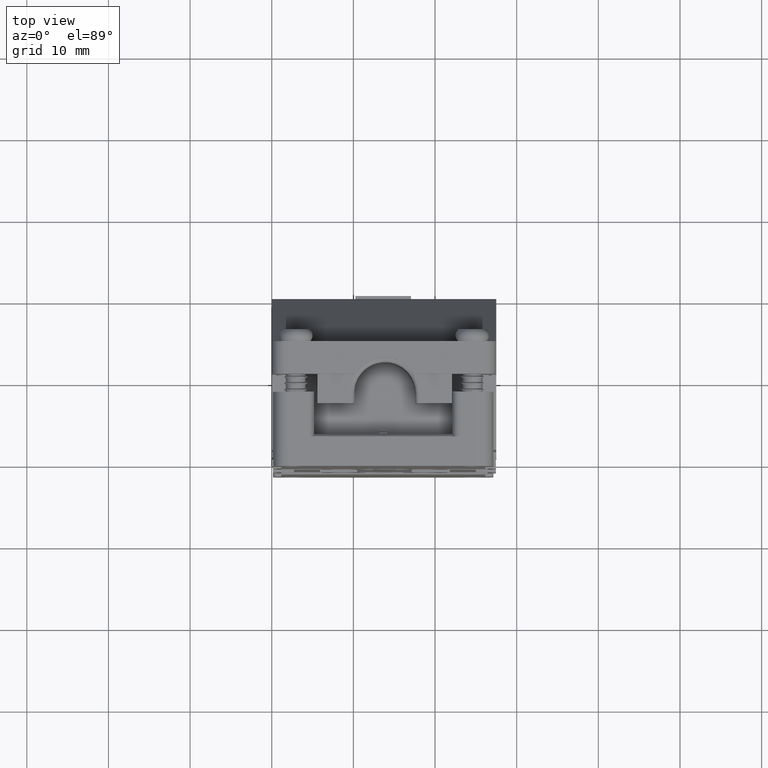
[diagram: clean part render]
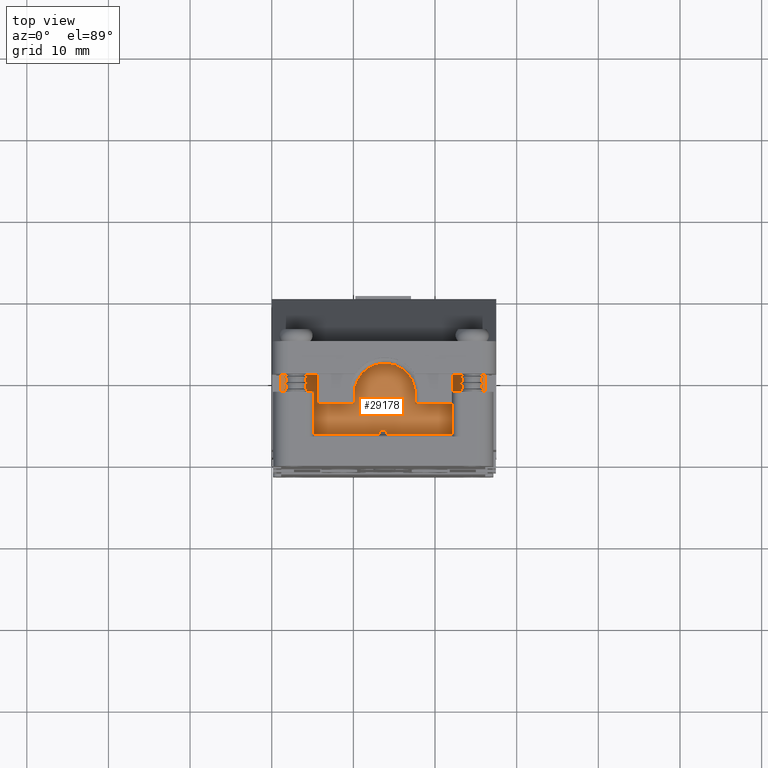
[diagram: same view with one face highlighted and labeled with its STEP entity id]
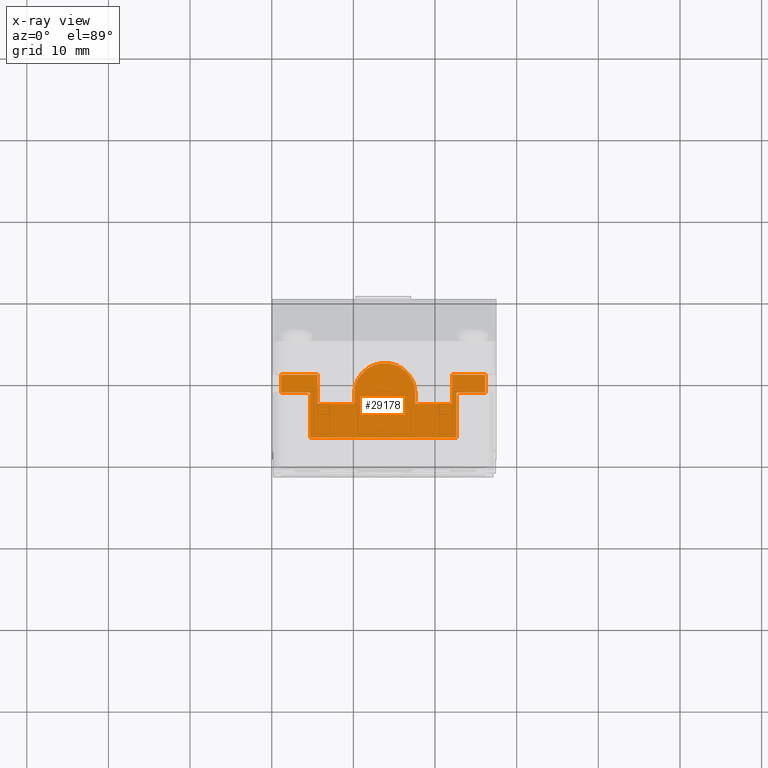
[diagram: x-ray of the same camera — body ghosted, the highlighted face saturated]
A machine part, top view. The second image highlights one B-rep face of the part: STEP entity #29178.
The next image is the same camera in x-ray: the body ghosted, the highlighted face saturated — about 0% of this face is hidden behind the body in this view.
In plain terms, the highlighted planar face has unit normal (0, 0, -1).
Its self-contained STEP definition (entity closure, byte-faithful):
#210 = DIRECTION ( 'NONE',  ( -0.0000000000000000000, -1.000000000000000000, -0.0000000000000000000 ) ) ;
#234 = LINE ( 'NONE', #237, #14259 ) ;
#237 = CARTESIAN_POINT ( 'NONE',  ( 5.600000000000000500, 4.000000000000000000, 42.65012171214300500 ) ) ;
#267 = LINE ( 'NONE', #325, #14261 ) ;
#302 = DIRECTION ( 'NONE',  ( -0.0000000000000000000, -1.000000000000000000, -0.0000000000000000000 ) ) ;
#325 = CARTESIAN_POINT ( 'NONE',  ( 22.62302097211401600, 4.000000000000000000, 42.65012171214408500 ) ) ;
#336 = LINE ( 'NONE', #344, #14248 ) ;
#339 = CARTESIAN_POINT ( 'NONE',  ( 10.09999999999999800, 4.000000000000000000, 42.65012171214328900 ) ) ;
#340 = DIRECTION ( 'NONE',  ( -1.000000000000000000, 0.0000000000000000000, -6.396607381706698500E-014 ) ) ;
#344 = CARTESIAN_POINT ( 'NONE',  ( 26.15000000000002700, -7.699999999999998400, 42.65012171214431200 ) ) ;
#346 = DIRECTION ( 'NONE',  ( 1.000000000000000000, 0.0000000000000000000, 0.0000000000000000000 ) ) ;
#348 = LINE ( 'NONE', #339, #14233 ) ;
#355 = DIRECTION ( 'NONE',  ( 0.0000000000000000000, 1.000000000000000000, 0.0000000000000000000 ) ) ;
#369 = LINE ( 'NONE', #370, #14210 ) ;
#370 = CARTESIAN_POINT ( 'NONE',  ( 26.15000000000002700, -7.025630077706068700E-014, 42.65012171214431200 ) ) ;
#371 = CARTESIAN_POINT ( 'NONE',  ( 13.85000000000000100, -2.326469788388990900, 42.65012171214376500 ) ) ;
#372 = DIRECTION ( 'NONE',  ( -0.0000000000000000000, -0.0000000000000000000, -1.000000000000000000 ) ) ;
#385 = LINE ( 'NONE', #419, #14211 ) ;
#402 = DIRECTION ( 'NONE',  ( 1.000000000000000000, -0.0000000000000000000, 6.396607381706698500E-014 ) ) ;
#419 = CARTESIAN_POINT ( 'NONE',  ( 26.15000000000002700, -3.576469788388990000, 42.65012171214431200 ) ) ;
#427 = DIRECTION ( 'NONE',  ( 1.000000000000000000, -0.0000000000000000000, 6.396607381706698500E-014 ) ) ;
#436 = CARTESIAN_POINT ( 'NONE',  ( 22.10000000000000100, 4.000000000000000000, 42.65012171214405600 ) ) ;
#472 = LINE ( 'NONE', #436, #14308 ) ;
#473 = DIRECTION ( 'NONE',  ( 0.0000000000000000000, 1.000000000000000000, 0.0000000000000000000 ) ) ;
#483 = LINE ( 'NONE', #558, #14291 ) ;
#485 = DIRECTION ( 'NONE',  ( -0.0000000000000000000, -1.000000000000000000, -0.0000000000000000000 ) ) ;
#501 = CARTESIAN_POINT ( 'NONE',  ( 26.15000000000002700, -7.025630077706068700E-014, 42.65012171214431200 ) ) ;
#502 = DIRECTION ( 'NONE',  ( 1.000000000000000000, -0.0000000000000000000, 6.396607381706698500E-014 ) ) ;
#504 = LINE ( 'NONE', #507, #14286 ) ;
#507 = CARTESIAN_POINT ( 'NONE',  ( 17.60000000000000100, 4.000000000000000000, 42.65012171214376500 ) ) ;
#508 = LINE ( 'NONE', #501, #14273 ) ;
#528 = DIRECTION ( 'NONE',  ( 0.0000000000000000000, 1.000000000000000000, 0.0000000000000000000 ) ) ;
#537 = CARTESIAN_POINT ( 'NONE',  ( 26.15000000000002700, -3.576469788388990000, 42.65012171214431200 ) ) ;
#538 = DIRECTION ( 'NONE',  ( 1.000000000000000000, -0.0000000000000000000, 6.396607381706698500E-014 ) ) ;
#558 = CARTESIAN_POINT ( 'NONE',  ( 4.676979027885858300, 4.000000000000000000, 42.65012171214294100 ) ) ;
#574 = LINE ( 'NONE', #537, #14289 ) ;
#4590 = EDGE_CURVE ( 'NONE', #26665, #26875, #23307, .T. ) ;
#4592 = EDGE_CURVE ( 'NONE', #26875, #26727, #23359, .T. ) ;
#4616 = EDGE_CURVE ( 'NONE', #26820, #26668, #23527, .T. ) ;
#4643 = EDGE_CURVE ( 'NONE', #26820, #26710, #23904, .T. ) ;
#5488 = EDGE_CURVE ( 'NONE', #26647, #26714, #234, .T. ) ;
#5513 = EDGE_CURVE ( 'NONE', #26668, #26651, #267, .T. ) ;
#5521 = EDGE_CURVE ( 'NONE', #26651, #26733, #336, .T. ) ;
#5524 = EDGE_CURVE ( 'NONE', #26699, #26715, #348, .T. ) ;
#5528 = EDGE_CURVE ( 'NONE', #26715, #26701, #14226, .T. ) ;
#5534 = EDGE_CURVE ( 'NONE', #26665, #26647, #369, .T. ) ;
#5535 = EDGE_CURVE ( 'NONE', #26752, #26659, #385, .T. ) ;
#5551 = EDGE_CURVE ( 'NONE', #26659, #26720, #472, .T. ) ;
#5570 = EDGE_CURVE ( 'NONE', #26720, #26710, #508, .T. ) ;
#5572 = EDGE_CURVE ( 'NONE', #26701, #26752, #504, .T. ) ;
#5587 = EDGE_CURVE ( 'NONE', #26733, #26727, #483, .T. ) ;
#5589 = EDGE_CURVE ( 'NONE', #26714, #26699, #574, .T. ) ;
#5919 = EDGE_LOOP ( 'NONE', ( #22351, #22331, #22333, #22342, #22341, #22327, #22348, #22334, #22311, #22350, #22387, #22376, #22354, #22349, #22385, #22361 ) ) ;
#8902 = VECTOR ( 'NONE', #23334, 1000.000000000000000 ) ;
#8915 = VECTOR ( 'NONE', #23433, 1000.000000000000000 ) ;
#8942 = VECTOR ( 'NONE', #23555, 1000.000000000000000 ) ;
#8969 = VECTOR ( 'NONE', #23846, 1000.000000000000000 ) ;
#10892 = CARTESIAN_POINT ( 'NONE',  ( 4.676979027885860100, -7.699999999999996600, 42.65012171214294100 ) ) ;
#10912 = CARTESIAN_POINT ( 'NONE',  ( 17.60000000000000100, -3.576469788388990000, 42.65012171214376500 ) ) ;
#10914 = CARTESIAN_POINT ( 'NONE',  ( 5.600000000000000500, -3.576469788388990000, 42.65012171214300500 ) ) ;
#10922 = CARTESIAN_POINT ( 'NONE',  ( 10.09999999999999800, -2.326469788388990900, 42.65012171214352300 ) ) ;
#10926 = CARTESIAN_POINT ( 'NONE',  ( 22.10000000000000100, -7.025630077706068700E-014, 42.65012171214404900 ) ) ;
#10942 = CARTESIAN_POINT ( 'NONE',  ( 4.676979027885681500, -2.199999999999994400, 42.65012171214282700 ) ) ;
#10989 = CARTESIAN_POINT ( 'NONE',  ( 26.15000000000003400, -2.199999999999994400, 42.65012171214431200 ) ) ;
#11022 = CARTESIAN_POINT ( 'NONE',  ( 1.150000000000021400, -2.199999999999994000, 42.65012171214272000 ) ) ;
#12018 = CARTESIAN_POINT ( 'NONE',  ( 5.600000000000000500, -7.025630077706068700E-014, 42.65012171214300500 ) ) ;
#12067 = CARTESIAN_POINT ( 'NONE',  ( 17.60000000000000100, -2.326469788388990900, 42.65012171214376500 ) ) ;
#12068 = CARTESIAN_POINT ( 'NONE',  ( 22.10000000000000100, -3.576469788388990000, 42.65012171214387100 ) ) ;
#12069 = CARTESIAN_POINT ( 'NONE',  ( 22.62302097211410500, -7.699999999999998400, 42.65012171214408500 ) ) ;
#12083 = CARTESIAN_POINT ( 'NONE',  ( 22.62302097211392000, -2.199999999999993500, 42.65012171214420500 ) ) ;
#12089 = CARTESIAN_POINT ( 'NONE',  ( 26.15000000000005500, -6.982261990806648600E-014, 42.65012171214431200 ) ) ;
#12096 = CARTESIAN_POINT ( 'NONE',  ( 10.09999999999999800, -3.576469788388990000, 42.65012171214329600 ) ) ;
#12110 = CARTESIAN_POINT ( 'NONE',  ( 1.150000000000018100, -6.996718019773122400E-014, 42.65012171214272000 ) ) ;
#13278 = AXIS2_PLACEMENT_3D ( 'NONE', #16051, #16030, #16035 ) ;
#14210 = VECTOR ( 'NONE', #427, 1000.000000000000000 ) ;
#14211 = VECTOR ( 'NONE', #402, 1000.000000000000000 ) ;
#14226 = CIRCLE ( 'NONE', #14255, 3.750000000000000000 ) ;
#14233 = VECTOR ( 'NONE', #355, 1000.000000000000000 ) ;
#14248 = VECTOR ( 'NONE', #340, 1000.000000000000000 ) ;
#14255 = AXIS2_PLACEMENT_3D ( 'NONE', #371, #372, #346 ) ;
#14259 = VECTOR ( 'NONE', #210, 1000.000000000000000 ) ;
#14261 = VECTOR ( 'NONE', #302, 1000.000000000000000 ) ;
#14273 = VECTOR ( 'NONE', #502, 1000.000000000000000 ) ;
#14286 = VECTOR ( 'NONE', #485, 1000.000000000000000 ) ;
#14289 = VECTOR ( 'NONE', #538, 1000.000000000000000 ) ;
#14291 = VECTOR ( 'NONE', #528, 1000.000000000000000 ) ;
#14308 = VECTOR ( 'NONE', #473, 1000.000000000000000 ) ;
#15982 = PLANE ( 'NONE',  #13278 ) ;
#15984 = FACE_OUTER_BOUND ( 'NONE', #5919, .T. ) ;
#16030 = DIRECTION ( 'NONE',  ( 6.396607381706698500E-014, 0.0000000000000000000, -1.000000000000000000 ) ) ;
#16035 = DIRECTION ( 'NONE',  ( -1.000000000000000000, 0.0000000000000000000, -6.396607381706698500E-014 ) ) ;
#16051 = CARTESIAN_POINT ( 'NONE',  ( 26.15000000000002700, 4.000000000000000000, 42.65012171214431200 ) ) ;
#22311 = ORIENTED_EDGE ( 'NONE', *, *, #5524, .F. ) ;
#22327 = ORIENTED_EDGE ( 'NONE', *, *, #5535, .F. ) ;
#22331 = ORIENTED_EDGE ( 'NONE', *, *, #4616, .F. ) ;
#22333 = ORIENTED_EDGE ( 'NONE', *, *, #4643, .T. ) ;
#22334 = ORIENTED_EDGE ( 'NONE', *, *, #5528, .F. ) ;
#22341 = ORIENTED_EDGE ( 'NONE', *, *, #5551, .F. ) ;
#22342 = ORIENTED_EDGE ( 'NONE', *, *, #5570, .F. ) ;
#22348 = ORIENTED_EDGE ( 'NONE', *, *, #5572, .F. ) ;
#22349 = ORIENTED_EDGE ( 'NONE', *, *, #4592, .T. ) ;
#22350 = ORIENTED_EDGE ( 'NONE', *, *, #5589, .F. ) ;
#22351 = ORIENTED_EDGE ( 'NONE', *, *, #5513, .F. ) ;
#22354 = ORIENTED_EDGE ( 'NONE', *, *, #4590, .T. ) ;
#22361 = ORIENTED_EDGE ( 'NONE', *, *, #5521, .F. ) ;
#22376 = ORIENTED_EDGE ( 'NONE', *, *, #5534, .F. ) ;
#22385 = ORIENTED_EDGE ( 'NONE', *, *, #5587, .F. ) ;
#22387 = ORIENTED_EDGE ( 'NONE', *, *, #5488, .F. ) ;
#23307 = LINE ( 'NONE', #23325, #8902 ) ;
#23325 = CARTESIAN_POINT ( 'NONE',  ( 1.150000000000016800, -11.19999999999999400, 42.65012171214272000 ) ) ;
#23334 = DIRECTION ( 'NONE',  ( -0.0000000000000000000, -1.000000000000000000, -0.0000000000000000000 ) ) ;
#23359 = LINE ( 'NONE', #23447, #8915 ) ;
#23433 = DIRECTION ( 'NONE',  ( 1.000000000000000000, 0.0000000000000000000, 0.0000000000000000000 ) ) ;
#23447 = CARTESIAN_POINT ( 'NONE',  ( 0.1499999999995393900, -2.199999999999994400, 42.65012171214272000 ) ) ;
#23527 = LINE ( 'NONE', #23576, #8942 ) ;
#23555 = DIRECTION ( 'NONE',  ( -1.000000000000000000, -0.0000000000000000000, 0.0000000000000000000 ) ) ;
#23576 = CARTESIAN_POINT ( 'NONE',  ( 27.14999999999955400, -2.199999999999994400, 42.65012171214431200 ) ) ;
#23841 = CARTESIAN_POINT ( 'NONE',  ( 26.15000000000002300, -11.19999999999999400, 42.65012171214431200 ) ) ;
#23846 = DIRECTION ( 'NONE',  ( 0.0000000000000000000, 1.000000000000000000, 0.0000000000000000000 ) ) ;
#23904 = LINE ( 'NONE', #23841, #8969 ) ;
#26647 = VERTEX_POINT ( 'NONE', #12018 ) ;
#26651 = VERTEX_POINT ( 'NONE', #12069 ) ;
#26659 = VERTEX_POINT ( 'NONE', #12068 ) ;
#26665 = VERTEX_POINT ( 'NONE', #12110 ) ;
#26668 = VERTEX_POINT ( 'NONE', #12083 ) ;
#26699 = VERTEX_POINT ( 'NONE', #12096 ) ;
#26701 = VERTEX_POINT ( 'NONE', #12067 ) ;
#26710 = VERTEX_POINT ( 'NONE', #12089 ) ;
#26714 = VERTEX_POINT ( 'NONE', #10914 ) ;
#26715 = VERTEX_POINT ( 'NONE', #10922 ) ;
#26720 = VERTEX_POINT ( 'NONE', #10926 ) ;
#26727 = VERTEX_POINT ( 'NONE', #10942 ) ;
#26733 = VERTEX_POINT ( 'NONE', #10892 ) ;
#26752 = VERTEX_POINT ( 'NONE', #10912 ) ;
#26820 = VERTEX_POINT ( 'NONE', #10989 ) ;
#26875 = VERTEX_POINT ( 'NONE', #11022 ) ;
#29178 = ADVANCED_FACE ( 'NONE', ( #15984 ), #15982, .F. ) ;